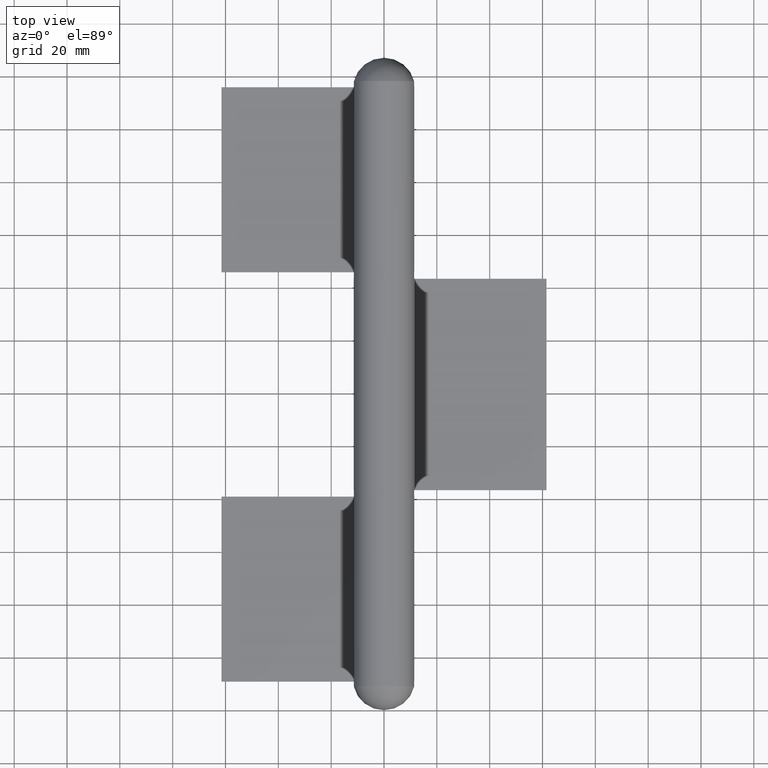
[diagram: clean part render]
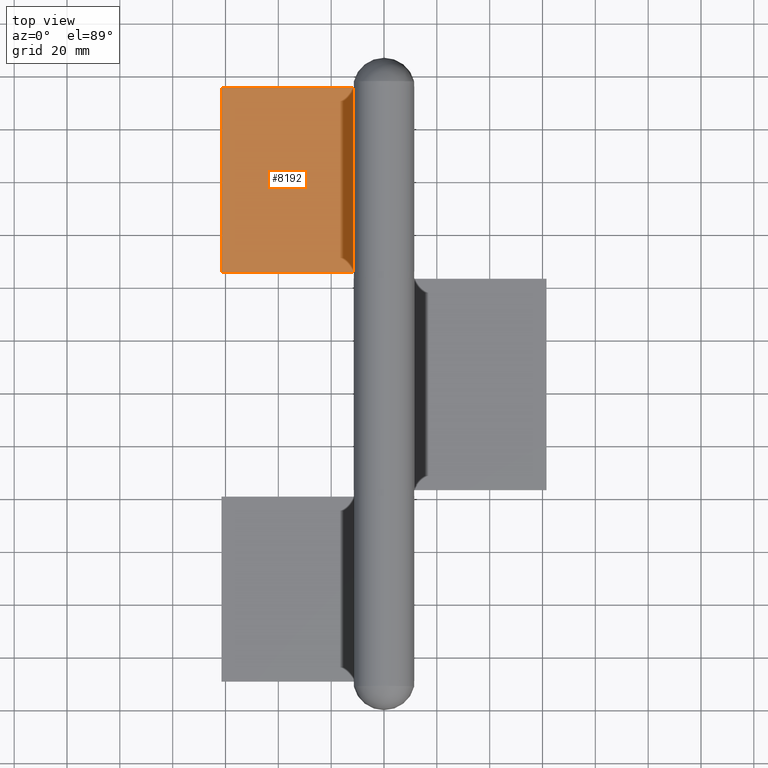
[diagram: same view with one face highlighted and labeled with its STEP entity id]
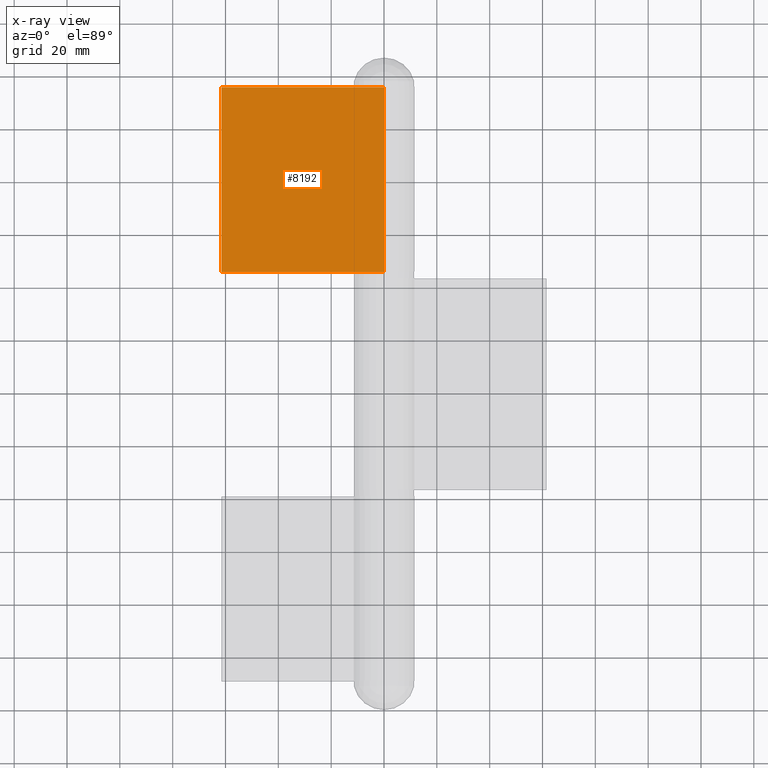
[diagram: x-ray of the same camera — body ghosted, the highlighted face saturated]
A machine part, top view. The second image highlights one B-rep face of the part: STEP entity #8192.
The next image is the same camera in x-ray: the body ghosted, the highlighted face saturated — about 0% of this face is hidden behind the body in this view.
In plain terms, the highlighted planar face has unit normal (0, 0, -1).
Its self-contained STEP definition (entity closure, byte-faithful):
#95 = ORIENTED_EDGE ( 'NONE', *, *, #2605, .F. ) ;
#177 = FACE_OUTER_BOUND ( 'NONE', #5164, .T. ) ;
#464 = CARTESIAN_POINT ( 'NONE',  ( -7.500000000000000000, -35.00000000000000000, 61.49500000000000455 ) ) ;
#510 = DIRECTION ( 'NONE',  ( 0.000000000000000000, 0.000000000000000000, -1.000000000000000000 ) ) ;
#614 = CARTESIAN_POINT ( 'NONE',  ( -7.500000000000000000, 35.00000000000000000, 61.49500000000000455 ) ) ;
#1061 = VERTEX_POINT ( 'NONE', #3257 ) ;
#1351 = VECTOR ( 'NONE', #11258, 1000.000000000000000 ) ;
#1391 = CARTESIAN_POINT ( 'NONE',  ( -7.500000000000000000, 35.00000000000000000, 61.49500000000000455 ) ) ;
#1412 = ORIENTED_EDGE ( 'NONE', *, *, #12153, .T. ) ;
#2134 = VECTOR ( 'NONE', #510, 1000.000000000000000 ) ;
#2373 = VERTEX_POINT ( 'NONE', #11133 ) ;
#2605 = EDGE_CURVE ( 'NONE', #8994, #1061, #11788, .T. ) ;
#2853 = AXIS2_PLACEMENT_3D ( 'NONE', #8195, #4289, #4182 ) ;
#2874 = VECTOR ( 'NONE', #5631, 1000.000000000000000 ) ;
#2891 = CARTESIAN_POINT ( 'NONE',  ( -7.500000000000000000, 35.00000000000000000, 61.49500000000000455 ) ) ;
#3069 = EDGE_CURVE ( 'NONE', #1061, #2373, #12027, .T. ) ;
#3257 = CARTESIAN_POINT ( 'NONE',  ( -7.500000000000000000, 35.00000000000000000, 0.000000000000000000 ) ) ;
#3853 = EDGE_CURVE ( 'NONE', #8994, #6122, #9575, .T. ) ;
#4182 = DIRECTION ( 'NONE',  ( 0.000000000000000000, 0.000000000000000000, 1.000000000000000000 ) ) ;
#4289 = DIRECTION ( 'NONE',  ( -1.000000000000000000, 0.000000000000000000, 0.000000000000000000 ) ) ;
#5164 = EDGE_LOOP ( 'NONE', ( #1412, #8731, #95, #9675 ) ) ;
#5631 = DIRECTION ( 'NONE',  ( -0.000000000000000000, -1.000000000000000000, -0.000000000000000000 ) ) ;
#5808 = CARTESIAN_POINT ( 'NONE',  ( -7.500000000000000000, -35.00000000000000000, 61.49500000000000455 ) ) ;
#5976 = CARTESIAN_POINT ( 'NONE',  ( -7.500000000000000000, 35.00000000000000000, 0.000000000000000000 ) ) ;
#6122 = VERTEX_POINT ( 'NONE', #5808 ) ;
#8192 = ADVANCED_FACE ( 'NONE', ( #177 ), #11109, .F. ) ;
#8195 = CARTESIAN_POINT ( 'NONE',  ( -7.500000000000000000, 35.00000000000000000, 61.49500000000000455 ) ) ;
#8731 = ORIENTED_EDGE ( 'NONE', *, *, #3069, .F. ) ;
#8994 = VERTEX_POINT ( 'NONE', #2891 ) ;
#9575 = LINE ( 'NONE', #614, #2874 ) ;
#9675 = ORIENTED_EDGE ( 'NONE', *, *, #3853, .T. ) ;
#10054 = LINE ( 'NONE', #464, #1351 ) ;
#11109 = PLANE ( 'NONE',  #2853 ) ;
#11133 = CARTESIAN_POINT ( 'NONE',  ( -7.500000000000000000, -35.00000000000000000, 0.000000000000000000 ) ) ;
#11258 = DIRECTION ( 'NONE',  ( 0.000000000000000000, 0.000000000000000000, -1.000000000000000000 ) ) ;
#11788 = LINE ( 'NONE', #1391, #2134 ) ;
#12027 = LINE ( 'NONE', #5976, #12668 ) ;
#12153 = EDGE_CURVE ( 'NONE', #6122, #2373, #10054, .T. ) ;
#12668 = VECTOR ( 'NONE', #12817, 1000.000000000000000 ) ;
#12817 = DIRECTION ( 'NONE',  ( -0.000000000000000000, -1.000000000000000000, -0.000000000000000000 ) ) ;